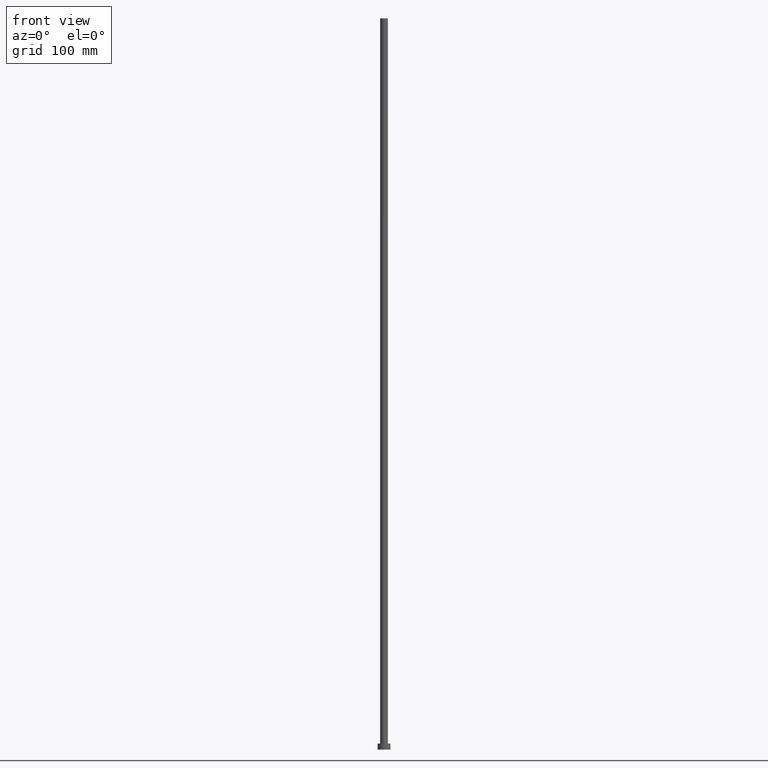
[diagram: clean part render]
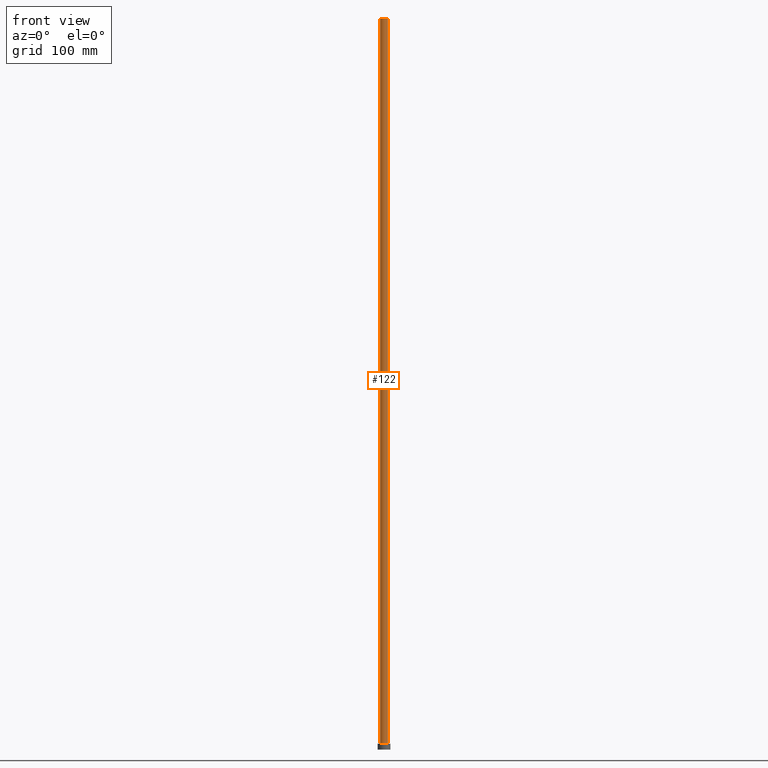
[diagram: same view with one face highlighted and labeled with its STEP entity id]
A machine part, front view. The second image highlights one B-rep face of the part: STEP entity #122.
In plain terms, the highlighted cylindrical surface (edge-blend (fillet) strip) has radius 4.25 mm, axis along (-0, -0, -1).
Its self-contained STEP definition (entity closure, byte-faithful):
#2 = CIRCLE ( 'NONE', #39, 4.250000000000000000 ) ;
#5 = ORIENTED_EDGE ( 'NONE', *, *, #170, .F. ) ;
#9 = DIRECTION ( 'NONE',  ( -0.000000000000000000, -0.000000000000000000, -1.000000000000000000 ) ) ;
#11 = FACE_OUTER_BOUND ( 'NONE', #169, .T. ) ;
#14 = CARTESIAN_POINT ( 'NONE',  ( -4.250000000000000000, 0.000000000000000000, 6.500000000000000000 ) ) ;
#22 = VECTOR ( 'NONE', #46, 1000.000000000000000 ) ;
#25 = EDGE_CURVE ( 'NONE', #160, #240, #95, .T. ) ;
#32 = ORIENTED_EDGE ( 'NONE', *, *, #218, .T. ) ;
#38 = DIRECTION ( 'NONE',  ( 0.000000000000000000, 0.000000000000000000, 1.000000000000000000 ) ) ;
#39 = AXIS2_PLACEMENT_3D ( 'NONE', #205, #38, #191 ) ;
#46 = DIRECTION ( 'NONE',  ( -0.000000000000000000, -0.000000000000000000, -1.000000000000000000 ) ) ;
#51 = ORIENTED_EDGE ( 'NONE', *, *, #25, .F. ) ;
#52 = EDGE_CURVE ( 'NONE', #89, #238, #2, .T. ) ;
#59 = CARTESIAN_POINT ( 'NONE',  ( -4.250000000000000000, 0.000000000000000000, 799.9999999999998863 ) ) ;
#65 = CARTESIAN_POINT ( 'NONE',  ( 4.250000000000000000, 5.204748896376250699E-16, 6.500000000000000000 ) ) ;
#89 = VERTEX_POINT ( 'NONE', #14 ) ;
#92 = DIRECTION ( 'NONE',  ( -0.000000000000000000, -0.000000000000000000, -1.000000000000000000 ) ) ;
#93 = DIRECTION ( 'NONE',  ( 1.000000000000000000, 0.000000000000000000, 0.000000000000000000 ) ) ;
#95 = CIRCLE ( 'NONE', #235, 4.250000000000000000 ) ;
#112 = CYLINDRICAL_SURFACE ( 'NONE', #217, 4.250000000000000000 ) ;
#115 = CARTESIAN_POINT ( 'NONE',  ( 0.000000000000000000, 0.000000000000000000, 799.9999999999998863 ) ) ;
#116 = CARTESIAN_POINT ( 'NONE',  ( 4.250000000000000000, 5.204748896376250699E-16, 799.9999999999998863 ) ) ;
#122 = ADVANCED_FACE ( 'NONE', ( #11 ), #112, .T. ) ;
#148 = LINE ( 'NONE', #251, #208 ) ;
#160 = VERTEX_POINT ( 'NONE', #59 ) ;
#168 = DIRECTION ( 'NONE',  ( -1.000000000000000000, 0.000000000000000000, 0.000000000000000000 ) ) ;
#169 = EDGE_LOOP ( 'NONE', ( #5, #51, #32, #200 ) ) ;
#170 = EDGE_CURVE ( 'NONE', #240, #238, #148, .T. ) ;
#174 = CARTESIAN_POINT ( 'NONE',  ( -4.250000000000000000, 0.000000000000000000, 799.9999999999998863 ) ) ;
#189 = CARTESIAN_POINT ( 'NONE',  ( 0.000000000000000000, 0.000000000000000000, 799.9999999999998863 ) ) ;
#191 = DIRECTION ( 'NONE',  ( 1.000000000000000000, 0.000000000000000000, 0.000000000000000000 ) ) ;
#200 = ORIENTED_EDGE ( 'NONE', *, *, #52, .T. ) ;
#205 = CARTESIAN_POINT ( 'NONE',  ( 0.000000000000000000, 0.000000000000000000, 6.500000000000000000 ) ) ;
#208 = VECTOR ( 'NONE', #9, 1000.000000000000000 ) ;
#217 = AXIS2_PLACEMENT_3D ( 'NONE', #189, #92, #168 ) ;
#218 = EDGE_CURVE ( 'NONE', #160, #89, #234, .T. ) ;
#234 = LINE ( 'NONE', #174, #22 ) ;
#235 = AXIS2_PLACEMENT_3D ( 'NONE', #115, #247, #93 ) ;
#238 = VERTEX_POINT ( 'NONE', #65 ) ;
#240 = VERTEX_POINT ( 'NONE', #116 ) ;
#247 = DIRECTION ( 'NONE',  ( 0.000000000000000000, 0.000000000000000000, 1.000000000000000000 ) ) ;
#251 = CARTESIAN_POINT ( 'NONE',  ( 4.250000000000000000, 5.204748896376250699E-16, 799.9999999999998863 ) ) ;